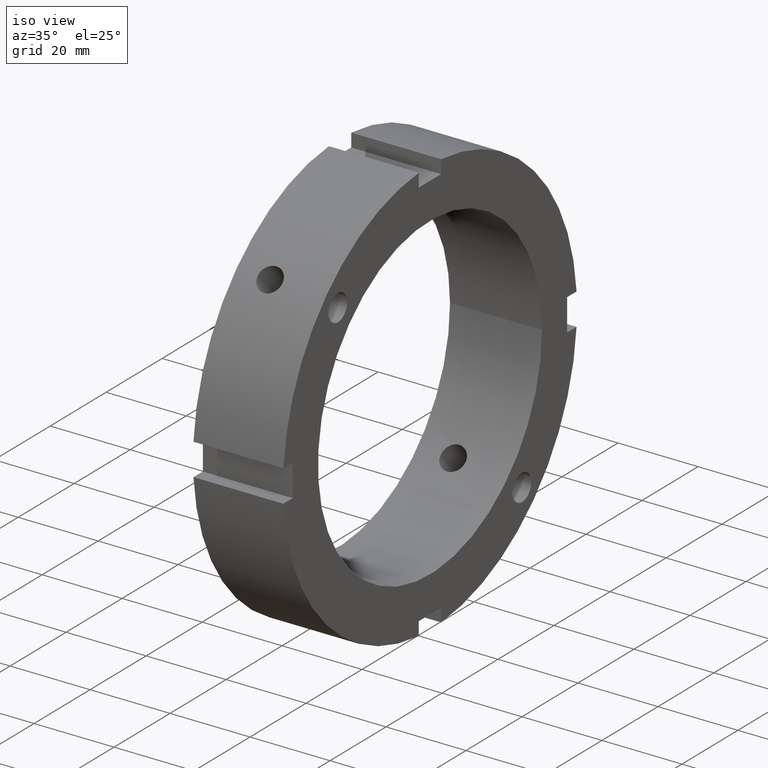
[diagram: clean part render]
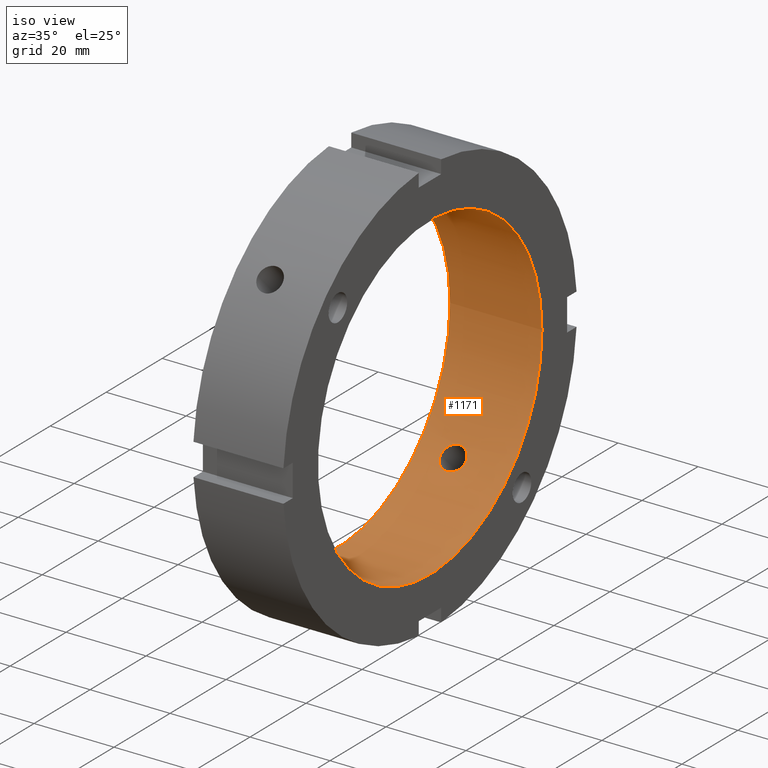
[diagram: same view with one face highlighted and labeled with its STEP entity id]
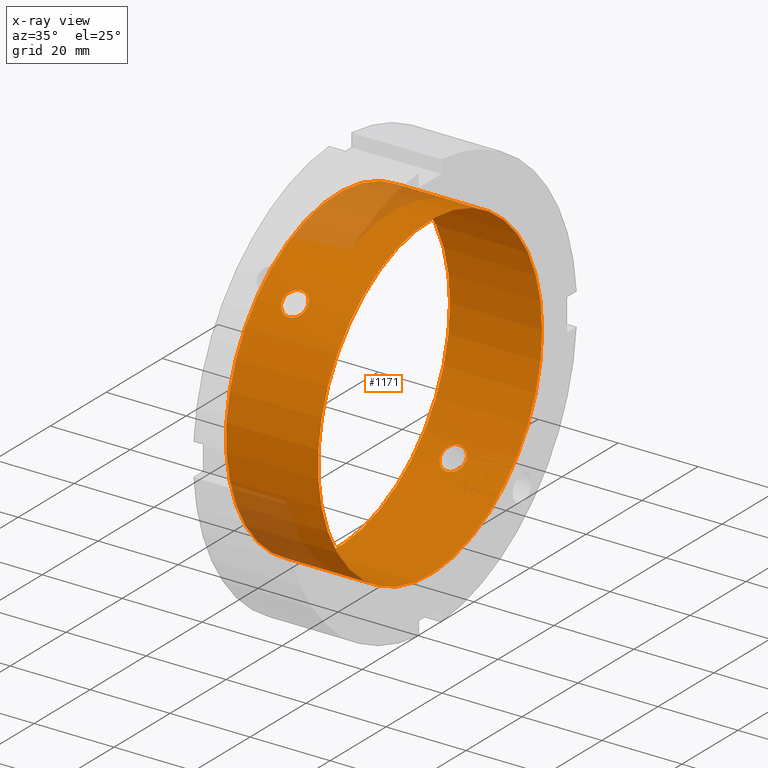
[diagram: x-ray of the same camera — body ghosted, the highlighted face saturated]
A machine part, iso view. The second image highlights one B-rep face of the part: STEP entity #1171.
The next image is the same camera in x-ray: the body ghosted, the highlighted face saturated — about 11% of this face is hidden behind the body in this view.
In plain terms, the highlighted cylindrical surface (bore or boss wall) has radius 40 mm, axis along (1, 0, 0).
Its self-contained STEP definition (entity closure, byte-faithful):
#256=CARTESIAN_POINT('',(8.999999999999988,-30.391233138050314,26.007171094693721));
#257=VERTEX_POINT('',#256);
#258=CARTESIAN_POINT('',(8.999999999999989,-30.391233138050314,26.007171094693717));
#259=CARTESIAN_POINT('',(9.389410709331003,-30.391233138050314,26.007171094693717));
#260=CARTESIAN_POINT('',(9.80467057557162,-30.34062915445141,26.066671845596218));
#261=CARTESIAN_POINT('',(10.568400167517014,-30.13295064831523,26.306471518521381));
#262=CARTESIAN_POINT('',(10.916883188563657,-29.975649586631,26.486531789382738));
#263=CARTESIAN_POINT('',(11.467178518200729,-29.607888062946756,26.897005384181817));
#264=CARTESIAN_POINT('',(11.705729264431055,-29.372837926157381,27.154784872985097));
#265=CARTESIAN_POINT('',(12.022144320484518,-28.848825632576812,27.710850022216498));
#266=CARTESIAN_POINT('',(12.099999999999989,-28.559625863850972,28.008916631072847));
#267=CARTESIAN_POINT('',(12.099999999999989,-28.008916631072843,28.559625863850975));
#268=CARTESIAN_POINT('',(12.022144320484522,-27.710850022216498,28.848825632576812));
#269=CARTESIAN_POINT('',(11.705729264431056,-27.1547848729851,29.372837926157377));
#270=CARTESIAN_POINT('',(11.467178518200731,-26.897005384181814,29.60788806294676));
#271=CARTESIAN_POINT('',(10.916883188563657,-26.486531789382735,29.975649586631008));
#272=CARTESIAN_POINT('',(10.568400167517016,-26.306471518521377,30.13295064831523));
#273=CARTESIAN_POINT('',(9.804670575571624,-26.066671845596211,30.34062915445141));
#274=CARTESIAN_POINT('',(9.389410709331001,-26.007171094693714,30.391233138050318));
#275=CARTESIAN_POINT('',(8.610589290668976,-26.007171094693714,30.391233138050318));
#276=CARTESIAN_POINT('',(8.195329424428355,-26.066671845596218,30.34062915445141));
#277=CARTESIAN_POINT('',(7.431599832482964,-26.306471518521377,30.13295064831523));
#278=CARTESIAN_POINT('',(7.083116811436321,-26.486531789382735,29.975649586631008));
#279=CARTESIAN_POINT('',(6.532821481799244,-26.897005384181814,29.607888062946756));
#280=CARTESIAN_POINT('',(6.294270735568923,-27.15478487298509,29.372837926157388));
#281=CARTESIAN_POINT('',(5.977855679515457,-27.710850022216491,28.848825632576819));
#282=CARTESIAN_POINT('',(5.899999999999988,-28.008916631072843,28.559625863850975));
#283=CARTESIAN_POINT('',(5.899999999999988,-28.559625863850972,28.008916631072847));
#284=CARTESIAN_POINT('',(5.977855679515461,-28.848825632576812,27.710850022216498));
#285=CARTESIAN_POINT('',(6.294270735568922,-29.372837926157381,27.154784872985097));
#286=CARTESIAN_POINT('',(6.532821481799246,-29.607888062946756,26.897005384181817));
#287=CARTESIAN_POINT('',(7.083116811436319,-29.975649586631,26.486531789382738));
#288=CARTESIAN_POINT('',(7.431599832482959,-30.13295064831523,26.306471518521384));
#289=CARTESIAN_POINT('',(8.195329424428351,-30.34062915445141,26.066671845596218));
#290=CARTESIAN_POINT('',(8.610589290668976,-30.391233138050314,26.007171094693721));
#291=CARTESIAN_POINT('',(8.999999999999988,-30.391233138050314,26.007171094693721));
#292=B_SPLINE_CURVE_WITH_KNOTS('',3,(#258,#259,#260,#261,#262,#263,#264,#265,#266,#267,#268,#269,#270,#271,#272,#273,#274,#275,#276,#277,#278,#279,#280,#281,#282,#283,#284,#285,#286,#287,#288,#289,#290,#291),.UNSPECIFIED.,.T.,.U.,(4,2,2,2,2,2,2,2,2,2,2,2,2,2,2,2,4),(0.0,0.116823212799304,0.233646425598607,0.350469495486444,0.467292565374281,0.584115635262118,0.700938705149955,0.817761917949259,0.934585130748563,1.051408343547867,1.16823155634717,1.285054626235007,1.401877696122844,1.518700766010681,1.635523835898518,1.752347048697822,1.869170261497126),.UNSPECIFIED.);
#293=EDGE_CURVE('',#257,#257,#292,.T.);
#486=CARTESIAN_POINT('',(8.999999999999988,26.007171094693714,-30.391233138050318));
#487=VERTEX_POINT('',#486);
#488=CARTESIAN_POINT('',(8.999999999999988,26.007171094693714,-30.391233138050318));
#489=CARTESIAN_POINT('',(8.610589290668976,26.007171094693714,-30.391233138050318));
#490=CARTESIAN_POINT('',(8.195329424428355,26.066671845596218,-30.34062915445141));
#491=CARTESIAN_POINT('',(7.431599832482964,26.306471518521377,-30.13295064831523));
#492=CARTESIAN_POINT('',(7.083116811436321,26.486531789382735,-29.975649586631008));
#493=CARTESIAN_POINT('',(6.532821481799246,26.897005384181814,-29.60788806294676));
#494=CARTESIAN_POINT('',(6.29427073556892,27.1547848729851,-29.372837926157377));
#495=CARTESIAN_POINT('',(5.977855679515457,27.710850022216498,-28.848825632576812));
#496=CARTESIAN_POINT('',(5.899999999999988,28.008916631072843,-28.559625863850975));
#497=CARTESIAN_POINT('',(5.899999999999988,28.559625863850972,-28.008916631072847));
#498=CARTESIAN_POINT('',(5.977855679515461,28.848825632576812,-27.710850022216498));
#499=CARTESIAN_POINT('',(6.294270735568922,29.372837926157381,-27.154784872985097));
#500=CARTESIAN_POINT('',(6.532821481799246,29.607888062946756,-26.897005384181817));
#501=CARTESIAN_POINT('',(7.083116811436319,29.975649586631,-26.486531789382738));
#502=CARTESIAN_POINT('',(7.431599832482961,30.13295064831523,-26.306471518521381));
#503=CARTESIAN_POINT('',(8.195329424428353,30.34062915445141,-26.066671845596222));
#504=CARTESIAN_POINT('',(8.610589290668976,30.391233138050321,-26.007171094693724));
#505=CARTESIAN_POINT('',(9.389410709331001,30.391233138050321,-26.007171094693724));
#506=CARTESIAN_POINT('',(9.80467057557162,30.34062915445141,-26.066671845596222));
#507=CARTESIAN_POINT('',(10.568400167517012,30.13295064831523,-26.306471518521381));
#508=CARTESIAN_POINT('',(10.916883188563656,29.975649586631,-26.486531789382738));
#509=CARTESIAN_POINT('',(11.467178518200727,29.607888062946756,-26.897005384181814));
#510=CARTESIAN_POINT('',(11.705729264431056,29.372837926157377,-27.1547848729851));
#511=CARTESIAN_POINT('',(12.022144320484518,28.848825632576812,-27.710850022216498));
#512=CARTESIAN_POINT('',(12.099999999999989,28.559625863850972,-28.008916631072847));
#513=CARTESIAN_POINT('',(12.099999999999989,28.008916631072843,-28.559625863850975));
#514=CARTESIAN_POINT('',(12.022144320484516,27.710850022216491,-28.848825632576819));
#515=CARTESIAN_POINT('',(11.705729264431051,27.15478487298509,-29.372837926157388));
#516=CARTESIAN_POINT('',(11.467178518200729,26.897005384181814,-29.60788806294676));
#517=CARTESIAN_POINT('',(10.916883188563652,26.486531789382735,-29.975649586631008));
#518=CARTESIAN_POINT('',(10.568400167517012,26.306471518521377,-30.13295064831523));
#519=CARTESIAN_POINT('',(9.804670575571622,26.066671845596218,-30.34062915445141));
#520=CARTESIAN_POINT('',(9.389410709330999,26.007171094693714,-30.391233138050318));
#521=CARTESIAN_POINT('',(8.999999999999988,26.007171094693714,-30.391233138050318));
#522=B_SPLINE_CURVE_WITH_KNOTS('',3,(#488,#489,#490,#491,#492,#493,#494,#495,#496,#497,#498,#499,#500,#501,#502,#503,#504,#505,#506,#507,#508,#509,#510,#511,#512,#513,#514,#515,#516,#517,#518,#519,#520,#521),.UNSPECIFIED.,.T.,.U.,(4,2,2,2,2,2,2,2,2,2,2,2,2,2,2,2,4),(0.0,0.116823212799304,0.233646425598607,0.350469495486444,0.467292565374281,0.584115635262118,0.700938705149955,0.817761917949259,0.934585130748563,1.051408343547867,1.16823155634717,1.285054626235007,1.401877696122844,1.518700766010682,1.635523835898519,1.752347048697822,1.869170261497126),.UNSPECIFIED.);
#523=EDGE_CURVE('',#487,#487,#522,.T.);
#1002=CARTESIAN_POINT('',(22.999999999999989,40.0,0.0));
#1003=VERTEX_POINT('',#1002);
#1004=CARTESIAN_POINT('',(22.999999999999989,0.0,0.0));
#1005=DIRECTION('',(1.0,0.0,0.0));
#1006=DIRECTION('',(0.0,1.0,0.0));
#1007=AXIS2_PLACEMENT_3D('',#1004,#1005,#1006);
#1008=CIRCLE('',#1007,40.0);
#1009=EDGE_CURVE('',#1003,#1003,#1008,.T.);
#1095=CARTESIAN_POINT('',(-1.135282E-014,40.0,0.0));
#1096=VERTEX_POINT('',#1095);
#1097=CARTESIAN_POINT('',(-1.135377E-014,0.0,0.0));
#1098=DIRECTION('',(1.0,0.0,0.0));
#1099=DIRECTION('',(0.0,1.0,0.0));
#1100=AXIS2_PLACEMENT_3D('',#1097,#1098,#1099);
#1101=CIRCLE('',#1100,40.0);
#1102=EDGE_CURVE('',#1096,#1096,#1101,.T.);
#1154=CARTESIAN_POINT('',(11.499999999999988,0.0,0.0));
#1155=DIRECTION('',(1.0,0.0,0.0));
#1156=DIRECTION('',(0.0,1.0,0.0));
#1157=AXIS2_PLACEMENT_3D('',#1154,#1155,#1156);
#1158=CYLINDRICAL_SURFACE('',#1157,40.0);
#1159=ORIENTED_EDGE('',*,*,#1102,.F.);
#1160=EDGE_LOOP('',(#1159));
#1161=FACE_OUTER_BOUND('',#1160,.T.);
#1162=ORIENTED_EDGE('',*,*,#293,.T.);
#1163=EDGE_LOOP('',(#1162));
#1164=FACE_BOUND('',#1163,.T.);
#1165=ORIENTED_EDGE('',*,*,#523,.T.);
#1166=EDGE_LOOP('',(#1165));
#1167=FACE_BOUND('',#1166,.T.);
#1168=ORIENTED_EDGE('',*,*,#1009,.T.);
#1169=EDGE_LOOP('',(#1168));
#1170=FACE_BOUND('',#1169,.T.);
#1171=ADVANCED_FACE('',(#1161,#1164,#1167,#1170),#1158,.F.);